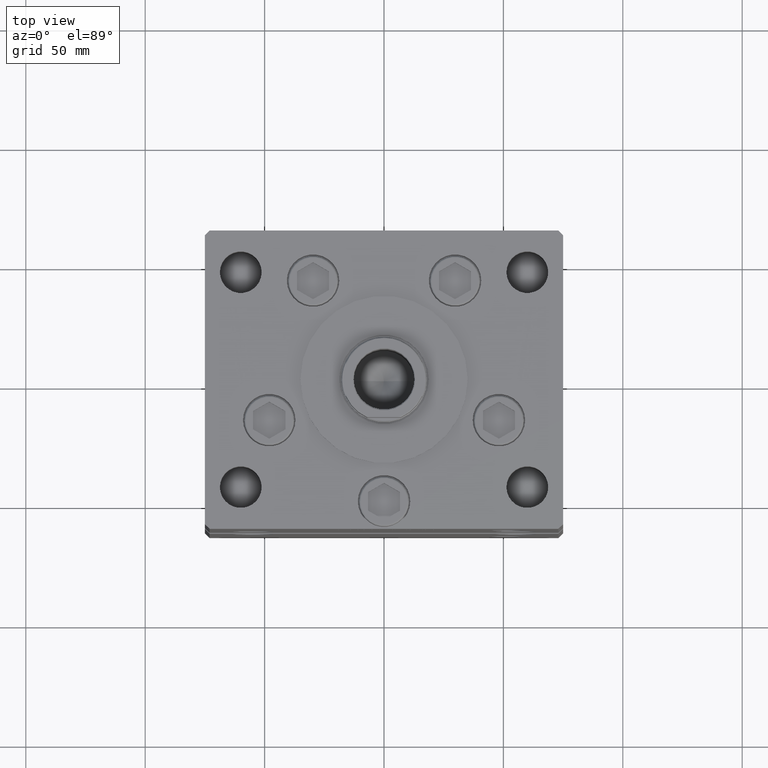
[diagram: clean part render]
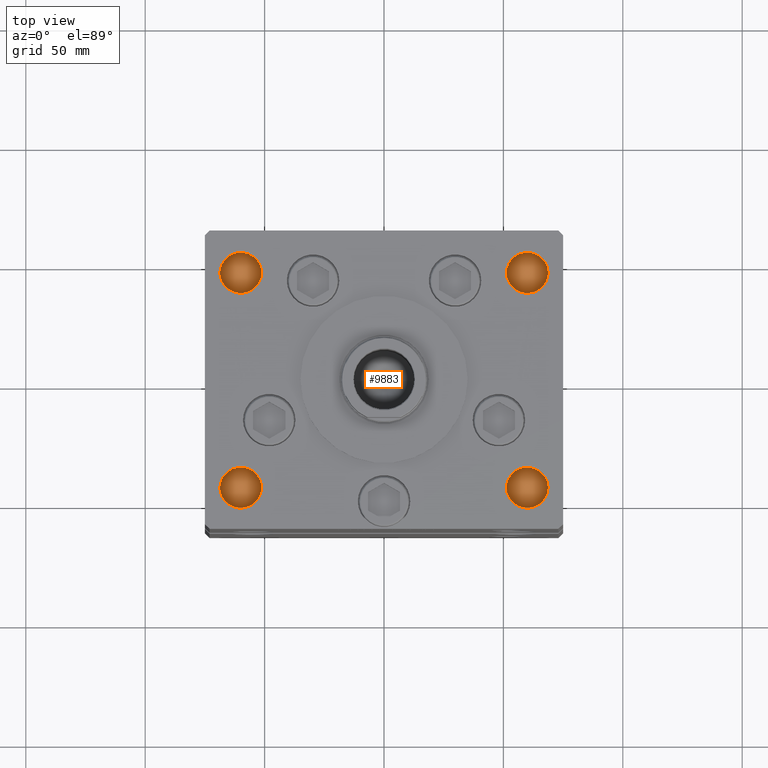
[diagram: same view with one face highlighted and labeled with its STEP entity id]
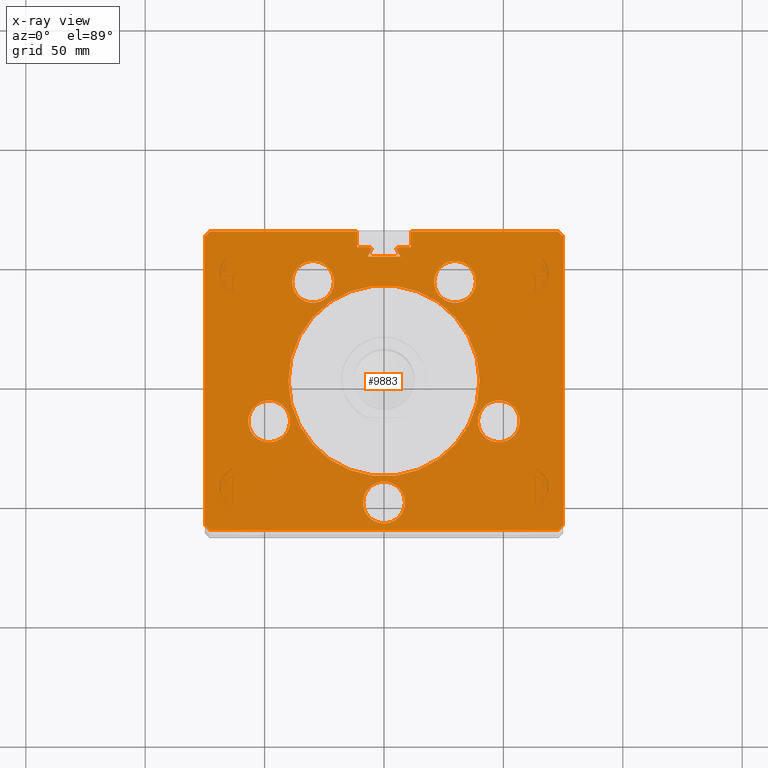
[diagram: x-ray of the same camera — body ghosted, the highlighted face saturated]
A machine part, top view. The second image highlights one B-rep face of the part: STEP entity #9883.
The next image is the same camera in x-ray: the body ghosted, the highlighted face saturated — about 0% of this face is hidden behind the body in this view.
In plain terms, the highlighted planar face has unit normal (0, 0, -1).
Its self-contained STEP definition (entity closure, byte-faithful):
#938 = DIRECTION ( 'NONE',  ( 0.000000000000000000, 0.000000000000000000, 1.000000000000000000 ) ) ;
#974 = CARTESIAN_POINT ( 'NONE',  ( 0.000000000000000000, 56.00000000000000000, 167.0000000000000000 ) ) ;
#1116 = EDGE_CURVE ( 'NONE', #3487, #41175, #43143, .T. ) ;
#1348 = VERTEX_POINT ( 'NONE', #2293 ) ;
#1472 = EDGE_CURVE ( 'NONE', #50838, #52381, #22681, .T. ) ;
#1625 = DIRECTION ( 'NONE',  ( 1.000000000000000000, 0.000000000000000000, 0.000000000000000000 ) ) ;
#2152 = DIRECTION ( 'NONE',  ( -0.000000000000000000, 0.000000000000000000, 1.000000000000000000 ) ) ;
#2293 = CARTESIAN_POINT ( 'NONE',  ( -5.250000000000000000, 55.06666666666600207, 166.9999999999999432 ) ) ;
#2308 = EDGE_CURVE ( 'NONE', #51922, #2422, #3968, .T. ) ;
#2324 = VECTOR ( 'NONE', #52188, 1000.000000000000000 ) ;
#2422 = VERTEX_POINT ( 'NONE', #41705 ) ;
#2541 = ORIENTED_EDGE ( 'NONE', *, *, #7644, .T. ) ;
#2675 = DIRECTION ( 'NONE',  ( -0.000000000000000000, -1.000000000000000000, 0.000000000000000000 ) ) ;
#2928 = CARTESIAN_POINT ( 'NONE',  ( 6.183333333334001480, 56.00000000000000000, 166.9999999999999432 ) ) ;
#2948 = CIRCLE ( 'NONE', #34596, 0.9333333333340008142 ) ;
#2962 = DIRECTION ( 'NONE',  ( 1.000000000000000000, 0.000000000000000000, 0.000000000000000000 ) ) ;
#3003 = CARTESIAN_POINT ( 'NONE',  ( 73.00000000000001421, 62.50000000000000000, 167.0000000000000000 ) ) ;
#3090 = ORIENTED_EDGE ( 'NONE', *, *, #13557, .F. ) ;
#3333 = CARTESIAN_POINT ( 'NONE',  ( -6.183333333334001480, 55.06666666666600207, 166.9999999999999432 ) ) ;
#3487 = VERTEX_POINT ( 'NONE', #18193 ) ;
#3580 = VECTOR ( 'NONE', #8722, 1000.000000000000114 ) ;
#3606 = VERTEX_POINT ( 'NONE', #8505 ) ;
#3806 = LINE ( 'NONE', #3003, #48738 ) ;
#3968 = LINE ( 'NONE', #16550, #28689 ) ;
#4203 = AXIS2_PLACEMENT_3D ( 'NONE', #44896, #24540, #40880 ) ;
#4272 = EDGE_LOOP ( 'NONE', ( #40896, #7175 ) ) ;
#5093 = CARTESIAN_POINT ( 'NONE',  ( 6.876153656360468602, 51.99999999999986500, 166.9999999999999432 ) ) ;
#5123 = VERTEX_POINT ( 'NONE', #2928 ) ;
#5281 = FACE_BOUND ( 'NONE', #32535, .T. ) ;
#5422 = CARTESIAN_POINT ( 'NONE',  ( 8.750000000000003553, -51.00000000000000000, 167.0000000000000000 ) ) ;
#5449 = CARTESIAN_POINT ( 'NONE',  ( 73.00000000000001421, 62.50000000000000000, 167.0000000000000000 ) ) ;
#5496 = ORIENTED_EDGE ( 'NONE', *, *, #1472, .F. ) ;
#5537 = FACE_OUTER_BOUND ( 'NONE', #33313, .T. ) ;
#5767 = CARTESIAN_POINT ( 'NONE',  ( 0.000000000000000000, 51.99999999999986500, 167.0000000000000000 ) ) ;
#6269 = AXIS2_PLACEMENT_3D ( 'NONE', #35642, #47443, #40464 ) ;
#6432 = ORIENTED_EDGE ( 'NONE', *, *, #51555, .F. ) ;
#7110 = VERTEX_POINT ( 'NONE', #16125 ) ;
#7175 = ORIENTED_EDGE ( 'NONE', *, *, #30504, .F. ) ;
#7577 = CIRCLE ( 'NONE', #14404, 40.00000000000000000 ) ;
#7644 = EDGE_CURVE ( 'NONE', #23800, #51922, #23505, .T. ) ;
#7805 = ORIENTED_EDGE ( 'NONE', *, *, #28108, .F. ) ;
#7870 = CARTESIAN_POINT ( 'NONE',  ( 74.99999999999998579, -60.50000000000000000, 167.0000000000000000 ) ) ;
#8444 = LINE ( 'NONE', #24793, #52838 ) ;
#8505 = CARTESIAN_POINT ( 'NONE',  ( -38.48102073172060500, 41.43749999999998579, 167.0000000000000000 ) ) ;
#8605 = ORIENTED_EDGE ( 'NONE', *, *, #41692, .T. ) ;
#8722 = DIRECTION ( 'NONE',  ( 0.4999999999999986122, 0.8660254037844393737, 0.000000000000000000 ) ) ;
#9510 = CARTESIAN_POINT ( 'NONE',  ( -11.25000000000000178, 56.00000000000000000, 166.9999999999999432 ) ) ;
#9534 = VERTEX_POINT ( 'NONE', #5093 ) ;
#9563 = FACE_BOUND ( 'NONE', #12925, .T. ) ;
#9844 = ORIENTED_EDGE ( 'NONE', *, *, #43995, .T. ) ;
#9857 = VECTOR ( 'NONE', #44553, 1000.000000000000114 ) ;
#9883 = ADVANCED_FACE ( 'NONE', ( #17358, #14108, #5281, #9563, #42249, #5537, #21379 ), #21893, .F. ) ;
#9923 = DIRECTION ( 'NONE',  ( 1.000000000000000000, 0.000000000000000000, 0.000000000000000000 ) ) ;
#10040 = CARTESIAN_POINT ( 'NONE',  ( 40.00000000000000000, 4.898587196589412237E-15, 167.0000000000000000 ) ) ;
#10203 = ORIENTED_EDGE ( 'NONE', *, *, #50942, .F. ) ;
#10209 = CARTESIAN_POINT ( 'NONE',  ( -11.25000000000000178, 62.50000000000000000, 167.0000000000000000 ) ) ;
#10227 = CARTESIAN_POINT ( 'NONE',  ( -6.183333333334002369, 56.00000000000000000, 166.9999999999999432 ) ) ;
#10290 = DIRECTION ( 'NONE',  ( -1.000000000000000000, 0.000000000000000000, 0.000000000000000000 ) ) ;
#10494 = EDGE_LOOP ( 'NONE', ( #5496, #52711 ) ) ;
#10718 = CARTESIAN_POINT ( 'NONE',  ( 11.25000000000000178, 0.000000000000000000, 167.0000000000000000 ) ) ;
#11831 = CARTESIAN_POINT ( 'NONE',  ( 0.000000000000000000, 0.000000000000000000, 167.0000000000000000 ) ) ;
#11855 = VERTEX_POINT ( 'NONE', #10227 ) ;
#11942 = EDGE_CURVE ( 'NONE', #29618, #45403, #7577, .T. ) ;
#12085 = CARTESIAN_POINT ( 'NONE',  ( 29.73102073172060145, 41.43749999999999289, 167.0000000000000000 ) ) ;
#12293 = VERTEX_POINT ( 'NONE', #13318 ) ;
#12667 = EDGE_CURVE ( 'NONE', #11855, #1348, #23873, .T. ) ;
#12863 = DIRECTION ( 'NONE',  ( 0.000000000000000000, 0.000000000000000000, 1.000000000000000000 ) ) ;
#12925 = EDGE_LOOP ( 'NONE', ( #48710, #6432 ) ) ;
#13143 = VERTEX_POINT ( 'NONE', #28053 ) ;
#13221 = ORIENTED_EDGE ( 'NONE', *, *, #17143, .F. ) ;
#13226 = VERTEX_POINT ( 'NONE', #9510 ) ;
#13318 = CARTESIAN_POINT ( 'NONE',  ( 20.98102073172059789, 41.43749999999999289, 167.0000000000000000 ) ) ;
#13557 = EDGE_CURVE ( 'NONE', #41175, #50623, #3806, .T. ) ;
#13634 = CIRCLE ( 'NONE', #29057, 8.750000000000000000 ) ;
#14108 = FACE_BOUND ( 'NONE', #42116, .T. ) ;
#14391 = ORIENTED_EDGE ( 'NONE', *, *, #33515, .F. ) ;
#14404 = AXIS2_PLACEMENT_3D ( 'NONE', #11831, #23884, #28422 ) ;
#14934 = CARTESIAN_POINT ( 'NONE',  ( -75.00000000000001421, 60.50000000000000000, 167.0000000000000000 ) ) ;
#15027 = DIRECTION ( 'NONE',  ( 1.000000000000000000, 0.000000000000000000, 0.000000000000000000 ) ) ;
#15158 = CARTESIAN_POINT ( 'NONE',  ( 48.08326112068522207, -17.00000000000000711, 167.0000000000000000 ) ) ;
#15541 = VERTEX_POINT ( 'NONE', #27845 ) ;
#15637 = EDGE_CURVE ( 'NONE', #52399, #3606, #31670, .T. ) ;
#15834 = LINE ( 'NONE', #52552, #25017 ) ;
#15914 = DIRECTION ( 'NONE',  ( 1.000000000000000000, 0.000000000000000000, 0.000000000000000000 ) ) ;
#15920 = CIRCLE ( 'NONE', #45836, 8.750000000000000000 ) ;
#16087 = LINE ( 'NONE', #40204, #47232 ) ;
#16125 = CARTESIAN_POINT ( 'NONE',  ( 5.375042956467948052, 54.59999999999899956, 166.9999999999999432 ) ) ;
#16339 = EDGE_LOOP ( 'NONE', ( #23516, #29483 ) ) ;
#16550 = CARTESIAN_POINT ( 'NONE',  ( -74.99999999999998579, -60.50000000000000000, 167.0000000000000000 ) ) ;
#16624 = CARTESIAN_POINT ( 'NONE',  ( 38.48102073172060500, 41.43749999999999289, 167.0000000000000000 ) ) ;
#16671 = DIRECTION ( 'NONE',  ( 1.000000000000000000, 0.000000000000000000, 0.000000000000000000 ) ) ;
#16745 = DIRECTION ( 'NONE',  ( -0.7071067811865474617, -0.7071067811865474617, 0.000000000000000000 ) ) ;
#16842 = CARTESIAN_POINT ( 'NONE',  ( -29.73102073172060855, 41.43749999999998579, 167.0000000000000000 ) ) ;
#17143 = EDGE_CURVE ( 'NONE', #7110, #5123, #32428, .T. ) ;
#17321 = ORIENTED_EDGE ( 'NONE', *, *, #1116, .F. ) ;
#17358 = FACE_BOUND ( 'NONE', #10494, .T. ) ;
#18193 = CARTESIAN_POINT ( 'NONE',  ( 11.24999999999999112, 62.50000000000000000, 167.0000000000000000 ) ) ;
#18854 = LINE ( 'NONE', #35174, #9857 ) ;
#18924 = DIRECTION ( 'NONE',  ( 0.000000000000000000, 0.000000000000000000, 1.000000000000000000 ) ) ;
#18955 = DIRECTION ( 'NONE',  ( 1.000000000000000000, 0.000000000000000000, 0.000000000000000000 ) ) ;
#19054 = DIRECTION ( 'NONE',  ( 0.000000000000000000, 1.000000000000000000, 0.000000000000000000 ) ) ;
#19066 = AXIS2_PLACEMENT_3D ( 'NONE', #50664, #2152, #1625 ) ;
#19230 = ORIENTED_EDGE ( 'NONE', *, *, #42733, .T. ) ;
#19457 = DIRECTION ( 'NONE',  ( 1.000000000000000000, 0.000000000000000000, 0.000000000000000000 ) ) ;
#19707 = EDGE_CURVE ( 'NONE', #13143, #35208, #13634, .T. ) ;
#19863 = DIRECTION ( 'NONE',  ( -1.000000000000000000, 0.000000000000000000, 0.000000000000000000 ) ) ;
#20056 = DIRECTION ( 'NONE',  ( 0.7071067811865474617, -0.7071067811865474617, 0.000000000000000000 ) ) ;
#20540 = DIRECTION ( 'NONE',  ( 1.000000000000000000, 0.000000000000000000, 0.000000000000000000 ) ) ;
#20571 = ORIENTED_EDGE ( 'NONE', *, *, #40377, .T. ) ;
#20748 = CARTESIAN_POINT ( 'NONE',  ( -11.25000000000000178, 62.50000000000000000, 166.9999999999999432 ) ) ;
#20812 = CARTESIAN_POINT ( 'NONE',  ( 27.67377574066567192, 15.97746187336660384, 167.0000000000000000 ) ) ;
#21055 = CARTESIAN_POINT ( 'NONE',  ( -27.67377574066567192, 15.97746187336660384, 167.0000000000000000 ) ) ;
#21197 = VECTOR ( 'NONE', #19863, 1000.000000000000000 ) ;
#21222 = CARTESIAN_POINT ( 'NONE',  ( 6.183333333334001480, 55.06666666666600207, 166.9999999999999432 ) ) ;
#21374 = CARTESIAN_POINT ( 'NONE',  ( -6.876153656360468602, 51.99999999999986500, 166.9999999999999432 ) ) ;
#21379 = FACE_BOUND ( 'NONE', #16339, .T. ) ;
#21893 = PLANE ( 'NONE',  #39180 ) ;
#22025 = VECTOR ( 'NONE', #10290, 1000.000000000000000 ) ;
#22216 = EDGE_CURVE ( 'NONE', #32476, #33483, #45681, .T. ) ;
#22249 = LINE ( 'NONE', #10718, #52758 ) ;
#22535 = VECTOR ( 'NONE', #9923, 1000.000000000000000 ) ;
#22584 = VERTEX_POINT ( 'NONE', #5422 ) ;
#22681 = CIRCLE ( 'NONE', #32125, 8.750000000000000000 ) ;
#22700 = CARTESIAN_POINT ( 'NONE',  ( -5.375042956467949828, 54.59999999999899956, 166.9999999999999432 ) ) ;
#22996 = ORIENTED_EDGE ( 'NONE', *, *, #36751, .F. ) ;
#23027 = AXIS2_PLACEMENT_3D ( 'NONE', #12085, #28938, #23609 ) ;
#23228 = CARTESIAN_POINT ( 'NONE',  ( -39.33326112068522207, -17.00000000000001421, 167.0000000000000000 ) ) ;
#23505 = LINE ( 'NONE', #14934, #2324 ) ;
#23516 = ORIENTED_EDGE ( 'NONE', *, *, #24526, .F. ) ;
#23609 = DIRECTION ( 'NONE',  ( 1.000000000000000000, 0.000000000000000000, 0.000000000000000000 ) ) ;
#23720 = CARTESIAN_POINT ( 'NONE',  ( 11.25000000000000178, 56.00000000000000000, 166.9999999999999432 ) ) ;
#23800 = VERTEX_POINT ( 'NONE', #44203 ) ;
#23873 = CIRCLE ( 'NONE', #43553, 0.9333333333340008142 ) ;
#23884 = DIRECTION ( 'NONE',  ( -0.000000000000000000, 0.000000000000000000, 1.000000000000000000 ) ) ;
#23987 = CARTESIAN_POINT ( 'NONE',  ( -40.00000000000000000, 0.000000000000000000, 167.0000000000000000 ) ) ;
#24165 = DIRECTION ( 'NONE',  ( 0.7071067811865474617, -0.7071067811865474617, 0.000000000000000000 ) ) ;
#24182 = CIRCLE ( 'NONE', #42978, 8.750000000000000000 ) ;
#24240 = ORIENTED_EDGE ( 'NONE', *, *, #22216, .T. ) ;
#24452 = VERTEX_POINT ( 'NONE', #23720 ) ;
#24526 = EDGE_CURVE ( 'NONE', #45403, #29618, #34447, .T. ) ;
#24540 = DIRECTION ( 'NONE',  ( 0.000000000000000000, 0.000000000000000000, 1.000000000000000000 ) ) ;
#24626 = VECTOR ( 'NONE', #44404, 1000.000000000000114 ) ;
#24793 = CARTESIAN_POINT ( 'NONE',  ( -73.00000000000001421, 62.50000000000000000, 167.0000000000000000 ) ) ;
#24872 = ORIENTED_EDGE ( 'NONE', *, *, #27117, .T. ) ;
#25017 = VECTOR ( 'NONE', #44507, 1000.000000000000000 ) ;
#25111 = EDGE_CURVE ( 'NONE', #2422, #52847, #38839, .T. ) ;
#25388 = DIRECTION ( 'NONE',  ( -1.000000000000000000, 0.000000000000000000, -0.000000000000000000 ) ) ;
#26675 = ORIENTED_EDGE ( 'NONE', *, *, #47815, .T. ) ;
#26677 = VERTEX_POINT ( 'NONE', #28930 ) ;
#27117 = EDGE_CURVE ( 'NONE', #13226, #48115, #16087, .T. ) ;
#27412 = CARTESIAN_POINT ( 'NONE',  ( 56.83326112068522207, -17.00000000000000711, 167.0000000000000000 ) ) ;
#27845 = CARTESIAN_POINT ( 'NONE',  ( -73.00000000000001421, 62.50000000000000000, 167.0000000000000000 ) ) ;
#28053 = CARTESIAN_POINT ( 'NONE',  ( 39.33326112068522207, -17.00000000000000711, 167.0000000000000000 ) ) ;
#28108 = EDGE_CURVE ( 'NONE', #15541, #48115, #15834, .T. ) ;
#28228 = EDGE_CURVE ( 'NONE', #26677, #22584, #24182, .T. ) ;
#28317 = LINE ( 'NONE', #20812, #24626 ) ;
#28422 = DIRECTION ( 'NONE',  ( 1.000000000000000000, 0.000000000000000000, 0.000000000000000000 ) ) ;
#28638 = EDGE_CURVE ( 'NONE', #50623, #52333, #48389, .T. ) ;
#28689 = VECTOR ( 'NONE', #20056, 1000.000000000000114 ) ;
#28930 = CARTESIAN_POINT ( 'NONE',  ( -8.749999999999998224, -51.00000000000000000, 167.0000000000000000 ) ) ;
#28938 = DIRECTION ( 'NONE',  ( 0.000000000000000000, 0.000000000000000000, 1.000000000000000000 ) ) ;
#29057 = AXIS2_PLACEMENT_3D ( 'NONE', #15158, #18924, #19457 ) ;
#29483 = ORIENTED_EDGE ( 'NONE', *, *, #11942, .F. ) ;
#29618 = VERTEX_POINT ( 'NONE', #10040 ) ;
#30029 = DIRECTION ( 'NONE',  ( 0.000000000000000000, 0.000000000000000000, -1.000000000000000000 ) ) ;
#30504 = EDGE_CURVE ( 'NONE', #3606, #52399, #45614, .T. ) ;
#30568 = DIRECTION ( 'NONE',  ( 0.000000000000000000, 0.000000000000000000, 1.000000000000000000 ) ) ;
#31105 = DIRECTION ( 'NONE',  ( -1.000000000000000000, 0.000000000000000000, 0.000000000000000000 ) ) ;
#31434 = VECTOR ( 'NONE', #31105, 1000.000000000000000 ) ;
#31652 = CARTESIAN_POINT ( 'NONE',  ( 0.000000000000000000, 56.00000000000000000, 167.0000000000000000 ) ) ;
#31670 = CIRCLE ( 'NONE', #37615, 8.749999999999998224 ) ;
#32125 = AXIS2_PLACEMENT_3D ( 'NONE', #51603, #44355, #36301 ) ;
#32428 = CIRCLE ( 'NONE', #35824, 0.9333333333340008142 ) ;
#32467 = CIRCLE ( 'NONE', #23027, 8.750000000000003553 ) ;
#32476 = VERTEX_POINT ( 'NONE', #21374 ) ;
#32535 = EDGE_LOOP ( 'NONE', ( #10203, #45438 ) ) ;
#32870 = DIRECTION ( 'NONE',  ( 1.000000000000000000, 0.000000000000000000, 0.000000000000000000 ) ) ;
#33127 = ORIENTED_EDGE ( 'NONE', *, *, #25111, .T. ) ;
#33172 = DIRECTION ( 'NONE',  ( 0.000000000000000000, 0.000000000000000000, 1.000000000000000000 ) ) ;
#33299 = CIRCLE ( 'NONE', #4203, 8.750000000000000000 ) ;
#33313 = EDGE_LOOP ( 'NONE', ( #19230, #24872, #7805, #20571, #2541, #52173, #33127, #51052, #47836, #3090, #17321, #9844, #40573, #13221, #26675, #8605, #24240, #14391, #43562 ) ) ;
#33483 = VERTEX_POINT ( 'NONE', #22700 ) ;
#33515 = EDGE_CURVE ( 'NONE', #1348, #33483, #2948, .T. ) ;
#34447 = CIRCLE ( 'NONE', #19066, 40.00000000000000000 ) ;
#34474 = DIRECTION ( 'NONE',  ( 0.000000000000000000, 0.000000000000000000, -1.000000000000000000 ) ) ;
#34596 = AXIS2_PLACEMENT_3D ( 'NONE', #47350, #34474, #18955 ) ;
#34782 = CIRCLE ( 'NONE', #39062, 8.750000000000003553 ) ;
#35115 = CARTESIAN_POINT ( 'NONE',  ( 29.73102073172060145, 41.43749999999999289, 167.0000000000000000 ) ) ;
#35174 = CARTESIAN_POINT ( 'NONE',  ( 74.99999999999998579, -60.50000000000000000, 167.0000000000000000 ) ) ;
#35208 = VERTEX_POINT ( 'NONE', #27412 ) ;
#35642 = CARTESIAN_POINT ( 'NONE',  ( -29.73102073172060855, 41.43749999999998579, 167.0000000000000000 ) ) ;
#35727 = CARTESIAN_POINT ( 'NONE',  ( -56.83326112068522207, -17.00000000000001421, 167.0000000000000000 ) ) ;
#35734 = DIRECTION ( 'NONE',  ( 0.000000000000000000, 0.000000000000000000, -1.000000000000000000 ) ) ;
#35824 = AXIS2_PLACEMENT_3D ( 'NONE', #21222, #30029, #16671 ) ;
#36081 = EDGE_CURVE ( 'NONE', #52333, #52847, #18854, .T. ) ;
#36301 = DIRECTION ( 'NONE',  ( 1.000000000000000000, 0.000000000000000000, 0.000000000000000000 ) ) ;
#36751 = EDGE_CURVE ( 'NONE', #22584, #26677, #15920, .T. ) ;
#36892 = DIRECTION ( 'NONE',  ( 0.000000000000000000, 0.000000000000000000, 1.000000000000000000 ) ) ;
#37615 = AXIS2_PLACEMENT_3D ( 'NONE', #16842, #33172, #45486 ) ;
#37751 = CARTESIAN_POINT ( 'NONE',  ( 3.122849337825750222E-15, -51.00000000000000000, 167.0000000000000000 ) ) ;
#38321 = CARTESIAN_POINT ( 'NONE',  ( -72.99999999999998579, -62.50000000000000000, 167.0000000000000000 ) ) ;
#38839 = LINE ( 'NONE', #38321, #22535 ) ;
#39062 = AXIS2_PLACEMENT_3D ( 'NONE', #35115, #30568, #15027 ) ;
#39180 = AXIS2_PLACEMENT_3D ( 'NONE', #46800, #49782, #25388 ) ;
#39615 = VECTOR ( 'NONE', #52418, 1000.000000000000000 ) ;
#39626 = EDGE_CURVE ( 'NONE', #40535, #12293, #34782, .T. ) ;
#40158 = CIRCLE ( 'NONE', #44449, 8.750000000000000000 ) ;
#40204 = CARTESIAN_POINT ( 'NONE',  ( -11.25000000000000178, 0.000000000000000000, 167.0000000000000000 ) ) ;
#40377 = EDGE_CURVE ( 'NONE', #15541, #23800, #8444, .T. ) ;
#40464 = DIRECTION ( 'NONE',  ( 1.000000000000000000, 0.000000000000000000, 0.000000000000000000 ) ) ;
#40535 = VERTEX_POINT ( 'NONE', #16624 ) ;
#40573 = ORIENTED_EDGE ( 'NONE', *, *, #42286, .T. ) ;
#40880 = DIRECTION ( 'NONE',  ( 1.000000000000000000, 0.000000000000000000, 0.000000000000000000 ) ) ;
#40896 = ORIENTED_EDGE ( 'NONE', *, *, #15637, .F. ) ;
#40919 = CARTESIAN_POINT ( 'NONE',  ( 3.122849337825750222E-15, -51.00000000000000000, 167.0000000000000000 ) ) ;
#41175 = VERTEX_POINT ( 'NONE', #5449 ) ;
#41459 = CARTESIAN_POINT ( 'NONE',  ( 75.00000000000001421, 60.50000000000000000, 167.0000000000000000 ) ) ;
#41692 = EDGE_CURVE ( 'NONE', #9534, #32476, #44225, .T. ) ;
#41705 = CARTESIAN_POINT ( 'NONE',  ( -72.99999999999998579, -62.50000000000000000, 167.0000000000000000 ) ) ;
#42116 = EDGE_LOOP ( 'NONE', ( #22996, #49554 ) ) ;
#42249 = FACE_BOUND ( 'NONE', #4272, .T. ) ;
#42286 = EDGE_CURVE ( 'NONE', #24452, #5123, #42698, .T. ) ;
#42698 = LINE ( 'NONE', #974, #22025 ) ;
#42733 = EDGE_CURVE ( 'NONE', #11855, #13226, #47190, .T. ) ;
#42978 = AXIS2_PLACEMENT_3D ( 'NONE', #37751, #12863, #46062 ) ;
#43143 = LINE ( 'NONE', #10209, #48351 ) ;
#43553 = AXIS2_PLACEMENT_3D ( 'NONE', #3333, #35734, #15914 ) ;
#43562 = ORIENTED_EDGE ( 'NONE', *, *, #12667, .F. ) ;
#43835 = CARTESIAN_POINT ( 'NONE',  ( 75.00000000000001421, 60.50000000000000000, 167.0000000000000000 ) ) ;
#43995 = EDGE_CURVE ( 'NONE', #3487, #24452, #22249, .T. ) ;
#44203 = CARTESIAN_POINT ( 'NONE',  ( -75.00000000000001421, 60.50000000000000000, 167.0000000000000000 ) ) ;
#44225 = LINE ( 'NONE', #5767, #21197 ) ;
#44355 = DIRECTION ( 'NONE',  ( 0.000000000000000000, 0.000000000000000000, 1.000000000000000000 ) ) ;
#44404 = DIRECTION ( 'NONE',  ( 0.4999999999999986122, -0.8660254037844393737, 0.000000000000000000 ) ) ;
#44449 = AXIS2_PLACEMENT_3D ( 'NONE', #45677, #938, #20540 ) ;
#44507 = DIRECTION ( 'NONE',  ( 1.000000000000000000, 0.000000000000000000, 0.000000000000000000 ) ) ;
#44553 = DIRECTION ( 'NONE',  ( -0.7071067811865474617, -0.7071067811865474617, 0.000000000000000000 ) ) ;
#44896 = CARTESIAN_POINT ( 'NONE',  ( 48.08326112068522207, -17.00000000000000711, 167.0000000000000000 ) ) ;
#45403 = VERTEX_POINT ( 'NONE', #23987 ) ;
#45438 = ORIENTED_EDGE ( 'NONE', *, *, #19707, .F. ) ;
#45486 = DIRECTION ( 'NONE',  ( 1.000000000000000000, 0.000000000000000000, 0.000000000000000000 ) ) ;
#45614 = CIRCLE ( 'NONE', #6269, 8.749999999999998224 ) ;
#45677 = CARTESIAN_POINT ( 'NONE',  ( -48.08326112068522207, -17.00000000000001421, 167.0000000000000000 ) ) ;
#45681 = LINE ( 'NONE', #21055, #3580 ) ;
#45836 = AXIS2_PLACEMENT_3D ( 'NONE', #40919, #36892, #32870 ) ;
#46062 = DIRECTION ( 'NONE',  ( 1.000000000000000000, 0.000000000000000000, 0.000000000000000000 ) ) ;
#46800 = CARTESIAN_POINT ( 'NONE',  ( 0.000000000000000000, 0.000000000000000000, 167.0000000000000000 ) ) ;
#47190 = LINE ( 'NONE', #31652, #31434 ) ;
#47232 = VECTOR ( 'NONE', #19054, 1000.000000000000000 ) ;
#47350 = CARTESIAN_POINT ( 'NONE',  ( -6.183333333334001480, 55.06666666666600207, 166.9999999999999432 ) ) ;
#47443 = DIRECTION ( 'NONE',  ( 0.000000000000000000, 0.000000000000000000, 1.000000000000000000 ) ) ;
#47815 = EDGE_CURVE ( 'NONE', #7110, #9534, #28317, .T. ) ;
#47836 = ORIENTED_EDGE ( 'NONE', *, *, #28638, .F. ) ;
#48115 = VERTEX_POINT ( 'NONE', #20748 ) ;
#48351 = VECTOR ( 'NONE', #2962, 1000.000000000000000 ) ;
#48389 = LINE ( 'NONE', #43835, #39615 ) ;
#48710 = ORIENTED_EDGE ( 'NONE', *, *, #39626, .F. ) ;
#48737 = CARTESIAN_POINT ( 'NONE',  ( 72.99999999999998579, -62.50000000000000000, 167.0000000000000000 ) ) ;
#48738 = VECTOR ( 'NONE', #24165, 1000.000000000000114 ) ;
#49554 = ORIENTED_EDGE ( 'NONE', *, *, #28228, .F. ) ;
#49771 = CARTESIAN_POINT ( 'NONE',  ( -74.99999999999998579, -60.50000000000000000, 167.0000000000000000 ) ) ;
#49782 = DIRECTION ( 'NONE',  ( 0.000000000000000000, 0.000000000000000000, -1.000000000000000000 ) ) ;
#50623 = VERTEX_POINT ( 'NONE', #41459 ) ;
#50664 = CARTESIAN_POINT ( 'NONE',  ( 0.000000000000000000, 0.000000000000000000, 167.0000000000000000 ) ) ;
#50838 = VERTEX_POINT ( 'NONE', #23228 ) ;
#50942 = EDGE_CURVE ( 'NONE', #35208, #13143, #33299, .T. ) ;
#50965 = EDGE_CURVE ( 'NONE', #52381, #50838, #40158, .T. ) ;
#51052 = ORIENTED_EDGE ( 'NONE', *, *, #36081, .F. ) ;
#51555 = EDGE_CURVE ( 'NONE', #12293, #40535, #32467, .T. ) ;
#51603 = CARTESIAN_POINT ( 'NONE',  ( -48.08326112068522207, -17.00000000000001421, 167.0000000000000000 ) ) ;
#51922 = VERTEX_POINT ( 'NONE', #49771 ) ;
#52173 = ORIENTED_EDGE ( 'NONE', *, *, #2308, .T. ) ;
#52188 = DIRECTION ( 'NONE',  ( 2.293849224432141861E-16, -1.000000000000000000, 0.000000000000000000 ) ) ;
#52333 = VERTEX_POINT ( 'NONE', #7870 ) ;
#52361 = CARTESIAN_POINT ( 'NONE',  ( -20.98102073172061210, 41.43749999999998579, 167.0000000000000000 ) ) ;
#52381 = VERTEX_POINT ( 'NONE', #35727 ) ;
#52399 = VERTEX_POINT ( 'NONE', #52361 ) ;
#52418 = DIRECTION ( 'NONE',  ( -2.293849224432141861E-16, -1.000000000000000000, 0.000000000000000000 ) ) ;
#52552 = CARTESIAN_POINT ( 'NONE',  ( -11.25000000000000178, 62.50000000000000000, 167.0000000000000000 ) ) ;
#52711 = ORIENTED_EDGE ( 'NONE', *, *, #50965, .F. ) ;
#52758 = VECTOR ( 'NONE', #2675, 1000.000000000000000 ) ;
#52838 = VECTOR ( 'NONE', #16745, 1000.000000000000114 ) ;
#52847 = VERTEX_POINT ( 'NONE', #48737 ) ;